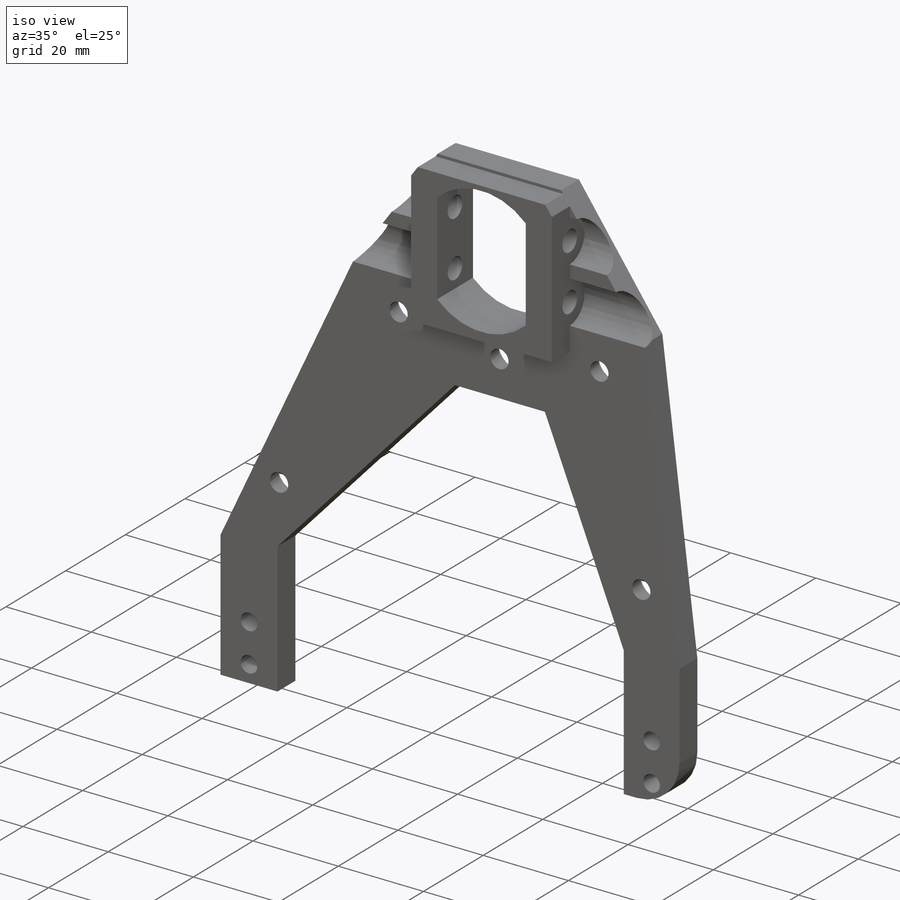
[diagram: iso view]
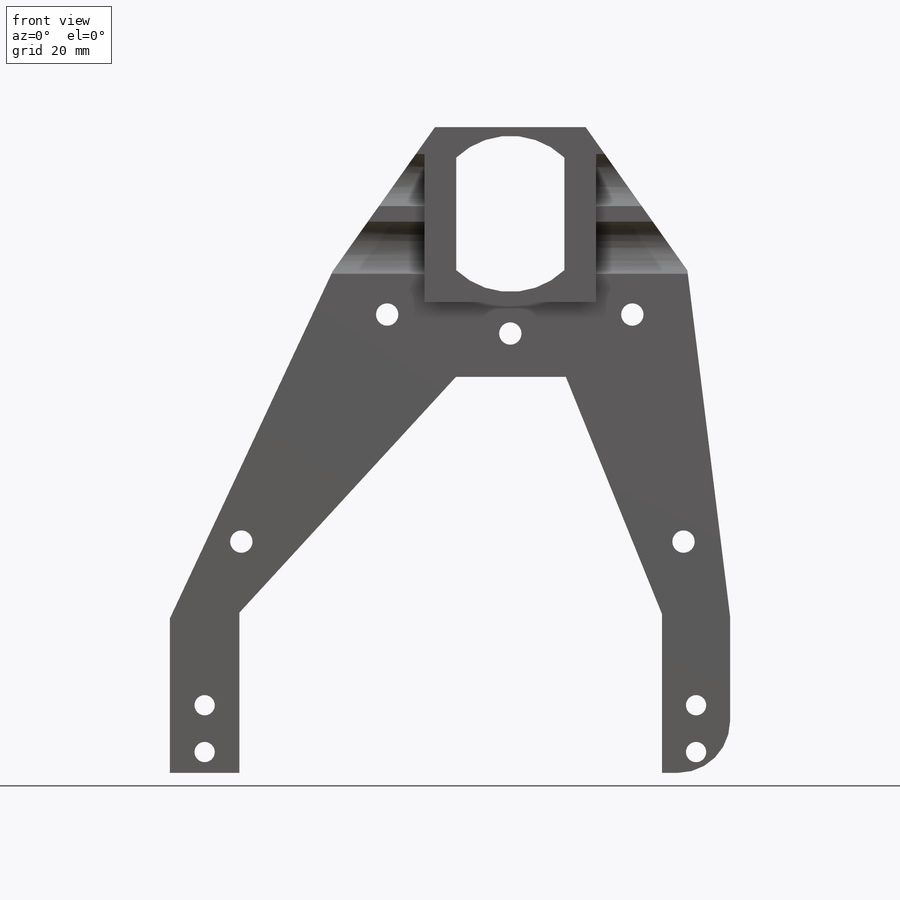
[diagram: front view]
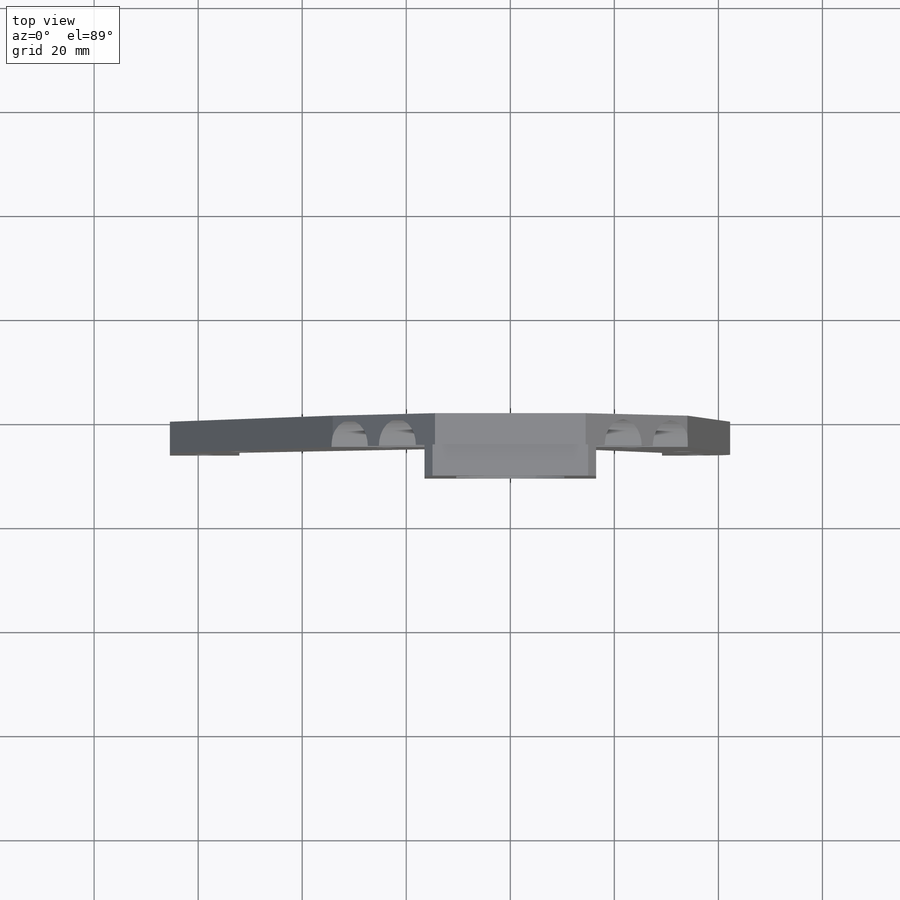
[diagram: top view]
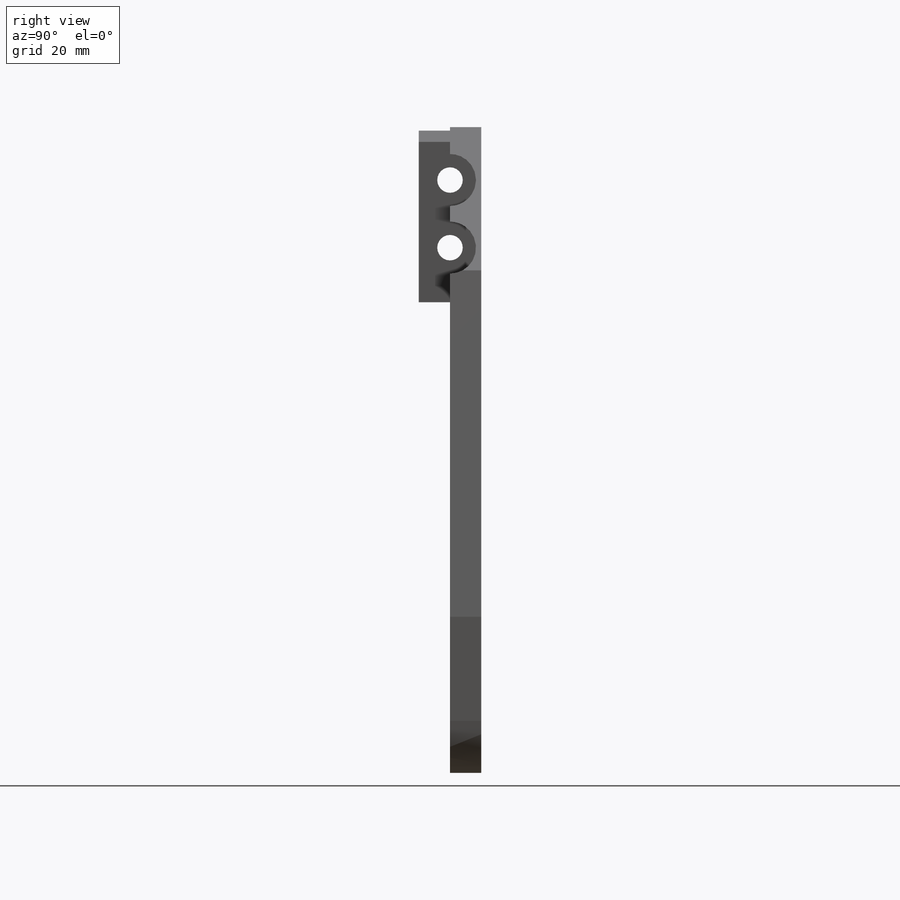
[diagram: right view]
SOLIDWORKS PART (.sldprt)
format: sldprt  version: not decoded by parser v0  size: 1,125,888 bytes
history: native  units: mm
features: sketch x10, cut_extrude x6, extrude x2, material x1, move_body x1, plane x1, hole x1, fillet x1 + 1 further entry (+19 scaffold rows collapsed; 5 parser-record rows omitted)
feature tree (48):
  scaffold x19  (default folders/planes/origin — collapsed)
  material  "ABS"
  "arm top left"
  parser-record x5  (decoder bookkeeping rows leaked as tree rows — omitted from the tree; the rows remain in map.json)
  move_body  "Body-Move/Copy2"
  plane  "Plane1"  Offset=8mm
  sketch  "Sketch1"  dims[c1.D3=30.0mm c1.D4=~13.080802mm c1.D5=~13.358174mm c1.D1=1.0mm c1.D2=1.0mm c2.D1=1.0mm]
  extrude  "Extrude1"  Depth=6mm
  sketch  "Sketch2"  dims[D1=30.0mm D2=33.0mm D3=33.0mm D4=16.0mm]
  extrude  "Extrude2"  Depth=6mm
  sketch  "Sketch3"  dims[D1=30.0mm D2=20.8mm]
  cut_extrude  "Extrude3"  Depth=12mm
  sketch  "Sketch5"  dims[D1=4.9mm D2=6.0mm D3=13.0mm]
  cut_extrude  "Extrude4"  [1 undecoded]
  sketch  "Sketch6"  dims[D1=10.0mm]
  cut_extrude  "Extrude5"  Depth=27.748007mm
  sketch  "Sketch7"  dims[D1=10.0mm]
  cut_extrude  "Extrude6"  Depth=32mm
  hole  "CBORE for M4 Pan Head Machine Screw2"  Diameter=4.3mm Depth=34.095492mm
  sketch  "Sketch9"  dims[c1.D1=85.0mm c1.D2=26.0mm c1.D3=20.0mm c1.D4=68.0mm c1.D5=5.0mm c1.D6=30.0mm c1.D7=18.0mm c1.D8=26.0mm c1.D9=23.0mm c2.D8=~18.944738mm c2.D10=~18.944738mm c3.D8=~18.944738mm c3.D10=~18.944738mm c3.D3=~18.944738mm]
  sketch  "Sketch8"  dims[hole-wizard template sketch: 42 standard entries collapsed; hole parameters kept: c12.Thru Hole Depth=~34.095492mm c12.C'Bore Dia.=9.0mm c12.C'Bore Depth=3.1mm]
  sketch  "Sketch10"  dims[D1=3.9mm D2=9.0mm D3=4.0mm]
  cut_extrude  "Extrude7"  [1 undecoded]
  fillet  "Fillet1"  Radius=10mm
  sketch  "Sketch11"
  cut_extrude  "Extrude8"  Depth=10mm
decode coverage: 17 of 21 modeling features carry decoded parameters; 1 rows unclassified (native names shown)
note: ~ marks probable driven/reference dimensions
note: 2 parameter values undecoded
note: suppression state not decoded; provenance and decode notes live in map.json
